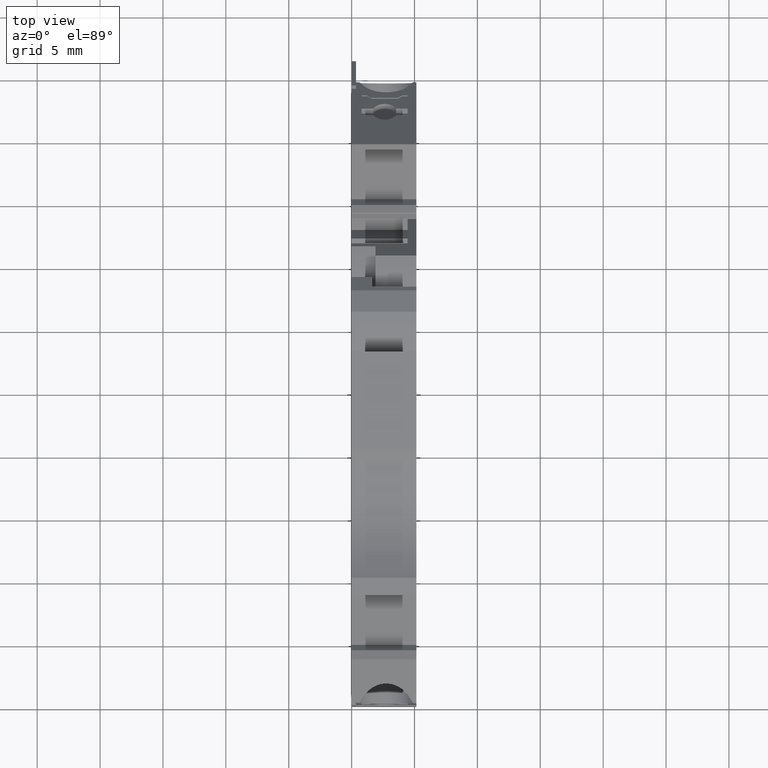
[diagram: clean part render]
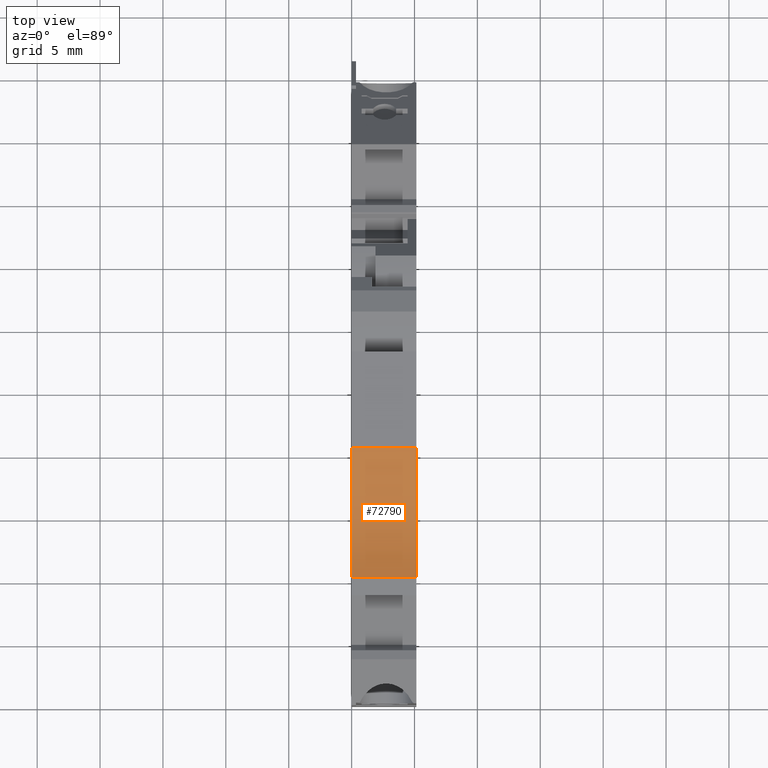
[diagram: same view with one face highlighted and labeled with its STEP entity id]
A machine part, top view. The second image highlights one B-rep face of the part: STEP entity #72790.
In plain terms, the highlighted cylindrical surface (partial cylindrical patch) has radius 10 mm, axis along (1, 0, -0).
Its self-contained STEP definition (entity closure, byte-faithful):
#22330=CARTESIAN_POINT('',(430.260883686882,697.534347839037,
111.34500017852));
#22340=DIRECTION('',(5.3188844066923E-10,-1.23311822582352E-10,1.));
#22350=VECTOR('',#22340,1.);
#22360=LINE('',#22330,#22350);
#22370=CARTESIAN_POINT('',(430.260883676774,697.534347842206,
96.5199999959448));
#22380=VERTEX_POINT('',#22370);
#22390=CARTESIAN_POINT('',(430.260883611021,697.534347841794,
101.669999993713));
#22400=VERTEX_POINT('',#22390);
#22410=EDGE_CURVE('',#22380,#22400,#22360,.T.);
#42020=CARTESIAN_POINT('',(435.42572805502,706.097313599811,
101.669999993087));
#42030=DIRECTION('',(-3.32876926372008E-10,1.27710660537958E-10,-1.));
#42040=DIRECTION('',(0.707106781186552,-0.707106781186543,
-3.25684606034386E-10));
#42050=AXIS2_PLACEMENT_3D('',#42020,#42030,#42040);
#42060=CIRCLE('',#42050,10.);
#42070=CARTESIAN_POINT('',(440.590572457062,697.534347841794,
101.669999990274));
#42080=VERTEX_POINT('',#42070);
#42090=EDGE_CURVE('',#42080,#22400,#42060,.T.);
#51730=CARTESIAN_POINT('',(440.590572431034,697.534347837579,
111.345000173025));
#51740=DIRECTION('',(5.3188844066923E-10,-1.23311822582352E-10,1.));
#51750=VECTOR('',#51740,1.);
#51760=LINE('',#51730,#51750);
#51770=CARTESIAN_POINT('',(440.59057242727,697.534347842052,
96.5199999904505));
#51780=VERTEX_POINT('',#51770);
#51790=EDGE_CURVE('',#51780,#42080,#51760,.T.);
#60270=CARTESIAN_POINT('',(435.425728052281,706.097313600446,
96.5200000024119));
#60280=DIRECTION('',(5.3188844066923E-10,-1.23311822582352E-10,1.));
#60290=DIRECTION('',(-0.386155667699773,-0.92243362921315,
9.16447639188909E-11));
#60300=AXIS2_PLACEMENT_3D('',#60270,#60280,#60290);
#60310=CIRCLE('',#60300,10.);
#60320=EDGE_CURVE('',#22380,#51780,#60310,.T.);
#72680=CARTESIAN_POINT('',(435.425728060166,706.097313598618,
111.345000176828));
#72690=DIRECTION('',(5.3188844066923E-10,-1.23311822582352E-10,1.));
#72700=DIRECTION('',(-0.386155667699774,-0.92243362921315,
9.16448326459935E-11));
#72710=AXIS2_PLACEMENT_3D('',#72680,#72690,#72700);
#72720=CYLINDRICAL_SURFACE('',#72710,10.);
#72730=ORIENTED_EDGE('',*,*,#22410,.T.);
#72740=ORIENTED_EDGE('',*,*,#60320,.F.);
#72750=ORIENTED_EDGE('',*,*,#51790,.F.);
#72760=ORIENTED_EDGE('',*,*,#42090,.F.);
#72770=EDGE_LOOP('',(#72760,#72750,#72740,#72730));
#72780=FACE_OUTER_BOUND('',#72770,.T.);
#72790=ADVANCED_FACE('',(#72780),#72720,.F.);